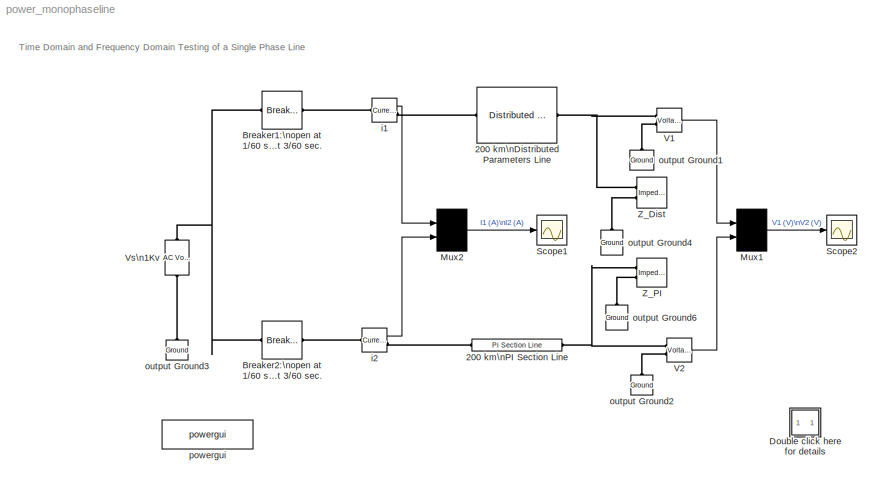
MODEL power_monophaseline
KIND model
BLOCK [Reference] 200 km\nDistributed Parameters Line  REF=powerlib/Elements/Distributed Parameters Line
  AttributesFormatString = \\n
  Capacitance = 12.37e-9
  Frequency = 60
  Inductance = 2.137e-3
  Length = 200
  Measurements = None
  Phases = 1
  Ports = [0, 0, 0, 0, 0, 1, 1]
  Resistance = 0.0955
  ShowPortLabels = on
  SourceBlock = powerlib/Elements/Distributed Parameters Line
  SourceType = Distributed Parameters Line
  x1 = [0 -378.111478683995;0.000205658707571549 -305.271981817252;0.000411317415143098 -230.598373057679;0.000616976122714648 -154.539300699466;0.000822634830286197 -77.5517370737755;0.00102829353785775 -0.0982330023556983]
  x2 = [0 -417.766377531924;0.000205658707571549 -339.363445347372;0.000411317415143098 -258.921575532847;0.000616976122714648 -176.9240728097;0.000822634830286197 -93.8635883345532;0.00102829353785775 -10.2391597901105]
  x3 = [0 -1.7651045305041;0.000205658707571549 -1.62172775369337;0.000411317415143098 -1.4686074355911;0.000616976122714648 -1.30666354204152;0.000822634830286197 -1.13686905202344;0.00102829353785775 -0.960244111872024]
  x4 = [0 -0.971127277857831;0.000205658707571549 -0.788874156966986;0.000411317415143098 -0.601881382392148;0.000616976122714648 -0.411272429893128;0.000822634830286197 -0.218192501674784;0.00102829353785775 -0.0238016458702721]
  x5 = 0.00102829353785775
BLOCK [Reference] 200 km\nPI Section Line  REF=powerlib/Elements/Pi Section Line
  AttributesFormatString = \\n
  Capacitance = 12.37e-09
  Frequency = 60
  Inductance = 2.137e-03
  LConnTagsString = __new0
  LeftPortType = p1
  Length = 200
  Measurements = None
  PhysicalDomain = powersysdomain
  PiSections = 2
  Ports = [0, 0, 0, 0, 0, 1, 1]
  RConnTagsString = __new0
  Resistance = 0.0955
  RightPortType = p1
  SourceBlock = powerlib/Elements/Pi Section Line
  SourceType = Pi Section Line
  SubClassName = unknown
BLOCK [Reference] Breaker1:\nopen at 1//60 sec. \nclose at 3//60 sec.  REF=powerlib/Elements/Breaker
  AttributesFormatString = \\n
  BreakerResistance = 0.1
  External = off
  InitialState = 1
  Measurements = None
  Ports = [0, 0, 0, 0, 0, 1, 1]
  ShowPortLabels = on
  SnubberCapacitance = 0
  SnubberResistance = inf
  SourceBlock = powerlib/Elements/Breaker
  SourceType = Breaker
  SwitchingTimes = [ 1/60  3/60 ]
BLOCK [Reference] Breaker2:\nopen at 1//60 sec.\nclose at 3//60 sec.  REF=powerlib/Elements/Breaker
  AttributesFormatString = \\n
  BreakerResistance = 0.1
  External = off
  InitialState = 1
  Measurements = None
  Ports = [0, 0, 0, 0, 0, 1, 1]
  ShowPortLabels = on
  SnubberCapacitance = 0
  SnubberResistance = inf
  SourceBlock = powerlib/Elements/Breaker
  SourceType = Breaker
  SwitchingTimes = [ 1/60  3/60 ]
BLOCK [SubSystem] Double click here for details
  MaskDisplay = disp('?')
  MaskIconFrame = on
  MaskIconOpaque = on
  MaskIconRotate = none
  MaskIconUnits = autoscale
  MinAlgLoopOccurrences = off
  Ports = []
  RTWSystemCode = Auto
  TreatAsAtomicUnit = off
BLOCK [Mux] Mux1
  Inputs = 2
  Ports = [2, 1]
BLOCK [Mux] Mux2
  Inputs = 2
  Ports = [2, 1]
BLOCK [Scope] Scope1
  DataFormat = Array
  NumInputPorts = 1
  Ports = [1]
  TickLabels = on
  TimeRange = 0.1
  YMax = 4
  YMin = -4
  ZoomMode = yonly
BLOCK [Scope] Scope2
  DataFormat = Array
  NumInputPorts = 1
  Ports = [1]
  TickLabels = on
  TimeRange = 0.1
  YMax = 2500
  YMin = -2500
BLOCK [Reference] V1  REF=powerlib/Measurements/Voltage Measurement
  AttributesFormatString = \\n
  OutputType = Magnitude
  PSBequivalent = 0
  PhasorSimulation = off
  Ports = [0, 1, 0, 0, 0, 2]
  ShowPortLabels = on
  SourceBlock = powerlib/Measurements/Voltage Measurement
  SourceType = Voltage Measurement
  Tag = PoWeRsYsTeMmEaSuReMeNt
BLOCK [Reference] V2  REF=powerlib/Measurements/Voltage Measurement
  AttributesFormatString = \\n
  OutputType = Magnitude
  PSBequivalent = 0
  PhasorSimulation = off
  Ports = [0, 1, 0, 0, 0, 2]
  ShowPortLabels = on
  SourceBlock = powerlib/Measurements/Voltage Measurement
  SourceType = Voltage Measurement
  Tag = PoWeRsYsTeMmEaSuReMeNt
BLOCK [Reference] Vs\n1Kv  REF=powerlib/Electrical\nSources/AC Voltage Source
  Amplitude = 1e3
  AttributesFormatString = \\n
  Description = source block
  Frequency = 60
  Measurements = None
  Phase = 0
  Ports = [0, 0, 0, 0, 0, 1, 1]
  SampleTime = 0
  ShowPortLabels = on
  SourceBlock = powerlib/Electrical\nSources/AC Voltage Source
  SourceType = AC Voltage Source
BLOCK [Reference] Z_Dist  REF=powerlib/Measurements/Impedance Measurement
  AttributesFormatString = \\n
  Factor = 1
  LConnTagsString = +|-
  LeftPortType = p1
  PhysicalDomain = powersysdomain
  Ports = [0, 0, 0, 0, 0, 2]
  RightPortType = p1
  SourceBlock = powerlib/Measurements/Impedance Measurement
  SourceType = Impedance Measurement
  SubClassName = unknown
BLOCK [Reference] Z_PI  REF=powerlib/Measurements/Impedance Measurement
  AttributesFormatString = \\n
  Factor = 1
  LConnTagsString = +|-
  LeftPortType = p1
  PhysicalDomain = powersysdomain
  Ports = [0, 0, 0, 0, 0, 2]
  RightPortType = p1
  SourceBlock = powerlib/Measurements/Impedance Measurement
  SourceType = Impedance Measurement
  SubClassName = unknown
BLOCK [Reference] i1  REF=powerlib/Measurements/Current Measurement
  AttributesFormatString = \\n
  OutputType = Magnitude
  PSBequivalent = 0
  PhasorSimulation = off
  Ports = [0, 1, 0, 0, 0, 1, 1]
  ShowPortLabels = on
  SourceBlock = powerlib/Measurements/Current Measurement
  SourceType = Current Measurement
  Tag = PoWeRsYsTeMmEaSuReMeNt
BLOCK [Reference] i2  REF=powerlib/Measurements/Current Measurement
  AttributesFormatString = \\n
  OutputType = Magnitude
  PSBequivalent = 0
  PhasorSimulation = off
  Ports = [0, 1, 0, 0, 0, 1, 1]
  ShowPortLabels = on
  SourceBlock = powerlib/Measurements/Current Measurement
  SourceType = Current Measurement
  Tag = PoWeRsYsTeMmEaSuReMeNt
BLOCK [Reference] output Ground1  REF=powerlib/Elements/Ground
  AttributesFormatString = \\n
  LConnTagsString = a
  LeftPortType = p1
  PhysicalDomain = powersysdomain
  Ports = [0, 0, 0, 0, 0, 1]
  RightPortType = p1
  SourceBlock = powerlib/Elements/Ground
  SourceType = Ground
  SubClassName = unknown
BLOCK [Reference] output Ground2  REF=powerlib/Elements/Ground
  AttributesFormatString = \\n
  LConnTagsString = a
  LeftPortType = p1
  PhysicalDomain = powersysdomain
  Ports = [0, 0, 0, 0, 0, 1]
  RightPortType = p1
  SourceBlock = powerlib/Elements/Ground
  SourceType = Ground
  SubClassName = unknown
BLOCK [Reference] output Ground3  REF=powerlib/Elements/Ground
  AttributesFormatString = \\n
  LConnTagsString = a
  LeftPortType = p1
  PhysicalDomain = powersysdomain
  Ports = [0, 0, 0, 0, 0, 1]
  RightPortType = p1
  SourceBlock = powerlib/Elements/Ground
  SourceType = Ground
  SubClassName = unknown
BLOCK [Reference] output Ground4  REF=powerlib/Elements/Ground
  AttributesFormatString = \\n
  LConnTagsString = a
  LeftPortType = p1
  PhysicalDomain = powersysdomain
  Ports = [0, 0, 0, 0, 0, 1]
  RightPortType = p1
  SourceBlock = powerlib/Elements/Ground
  SourceType = Ground
  SubClassName = unknown
BLOCK [Reference] output Ground6  REF=powerlib/Elements/Ground
  AttributesFormatString = \\n
  LConnTagsString = a
  LeftPortType = p1
  PhysicalDomain = powersysdomain
  Ports = [0, 0, 0, 0, 0, 1]
  RightPortType = p1
  SourceBlock = powerlib/Elements/Ground
  SourceType = Ground
  SubClassName = unknown
BLOCK [Reference] powergui  REF=powerlib/powergui
  DisplayStyle = off
  Frange = 0:2:2000
  FreqAxis = off
  MaxFrequency = 1000
  Ports = []
  Priority = 2
  RmsSteady = 1
  ShowPortLabels = on
  SourceBlock = powerlib/powergui
  SourceType = PSB option menu block
  StartTime = 0.0
  Ts = 0
  Xlog = off
  Ylog = on
  ZoomFFT = on
  cycles = 1
  display = on
  echomessages = on
  frequency = 60
  frequencyindice = 1
  frequencyindicesteady = 1
  fundamental = 60
  methode = off
  save = off
  variable = ZData
ANNOTATION (root): Time Domain and Frequency Domain Testing of a Single Phase Line
ANNOTATION Double click here for details: 1. Steady-state
ANNOTATION Double click here for details: 2. Time domain comparison
ANNOTATION Double click here for details: 3. Frequency domain comparison
ANNOTATION Double click here for details: A 200 km line is connected on a 1 kV, 60 Hz infinite source. The line is deenergized and then reenergized after 2 cycles. \nThe simulation is performed simultaneously with two different line models: \n\n- Distributed parameter line \n- PI section line consisting of two 100 km sections.\n\nCurrents at the sending end and voltages at the receiving end are compared for the two line models.\nImpedance...<+110ch>
ANNOTATION Double click here for details: Circuit Description
ANNOTATION Double click here for details: Demonstration
ANNOTATION Double click here for details: G. Sybille (Hydro-Quebec)
ANNOTATION Double click here for details: Open the Powergui block and select 'Impedance vs Frequency Measurement'.\nA new window appears, listing the two Impedance Measurement blocks Z_Dist and Z_PI connected to your circuit.\nNote also that parameters are set to compute impedance in the 0:2000 Hz frequency range by steps of 2 Hz.\nUsing the 'CTRL' key, select both Z_Dist and Z_PI in the upper right window.\nThen, click on the Display but...<+566ch>
ANNOTATION Double click here for details: Open the Powergui block and select 'Steady-State Voltages and Currents' to display the voltage and current phasors. \nObserve that the values obtained with the two models are the same.
ANNOTATION Double click here for details: Open the two scopes and start the simulation.\nObserve the difference in current and voltage waveforms at breaker opening and reclosing.\nNote the sharp edges of the distributed parameter model (in yellow).\nThese voltage and current steps which are due to travelling wave reflections at line ends are filtered by the PI model.
ANNOTATION Double click here for details: This demonstration compares time domain and frequencydomain performance \nof distributed parameter line model and PI section line model
LINE Mux1:1 -> Scope2:1
LINE Mux2:1 -> Scope1:1
LINE V1:1 -> Mux1:1
LINE V2:1 -> Mux1:2
LINE i1:1 -> Mux2:1
LINE i2:1 -> Mux2:2
PLINE 200 km\nDistributed Parameters Line:LConn1 -- i1:RConn1
PNET net1: 200 km\nDistributed Parameters Line:RConn1 -- V1:LConn1 -- Z_Dist:LConn1
PLINE 200 km\nPI Section Line:LConn1 -- i2:RConn1
PNET net2: 200 km\nPI Section Line:RConn1 -- V2:LConn1 -- Z_PI:LConn1
PNET net3: Breaker1:\nopen at 1//60 sec. \nclose at 3//60 sec.:LConn1 -- Breaker2:\nopen at 1//60 sec.\nclose at 3//60 sec.:LConn1 -- Vs\n1Kv:RConn1
PLINE Breaker1:\nopen at 1//60 sec. \nclose at 3//60 sec.:RConn1 -- i1:LConn1
PLINE Breaker2:\nopen at 1//60 sec.\nclose at 3//60 sec.:RConn1 -- i2:LConn1
PLINE V1:LConn2 -- output Ground1:LConn1
PLINE V2:LConn2 -- output Ground2:LConn1
PLINE Vs\n1Kv:LConn1 -- output Ground3:LConn1
PLINE Z_Dist:LConn2 -- output Ground4:LConn1
PLINE Z_PI:LConn2 -- output Ground6:LConn1
note: PNET lines group multi-terminal physical nets as a canonical sorted terminal list (undirected conserving connections); 2-terminal nets keep the pairwise PLINE form
